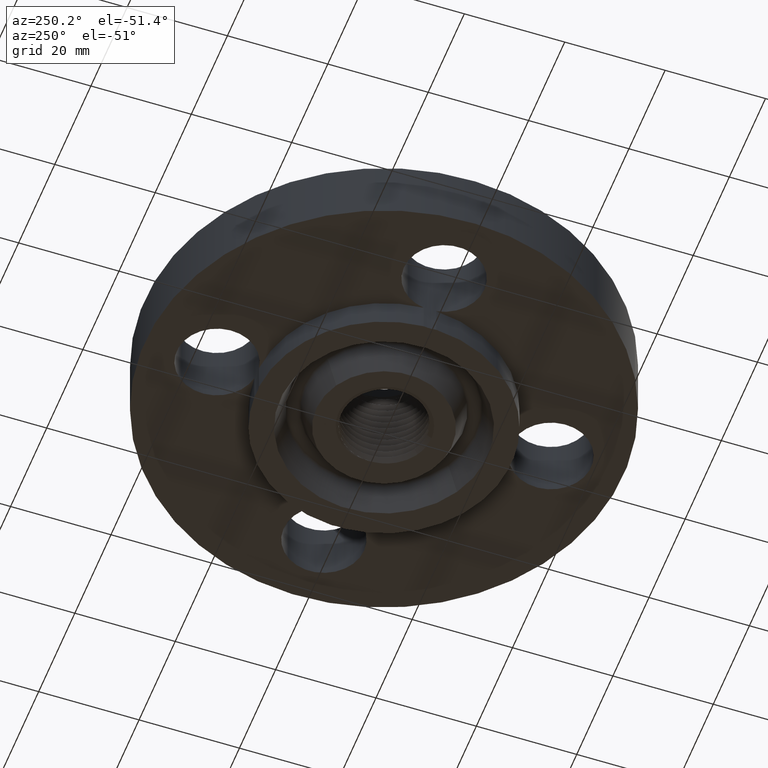
[diagram: clean part render]
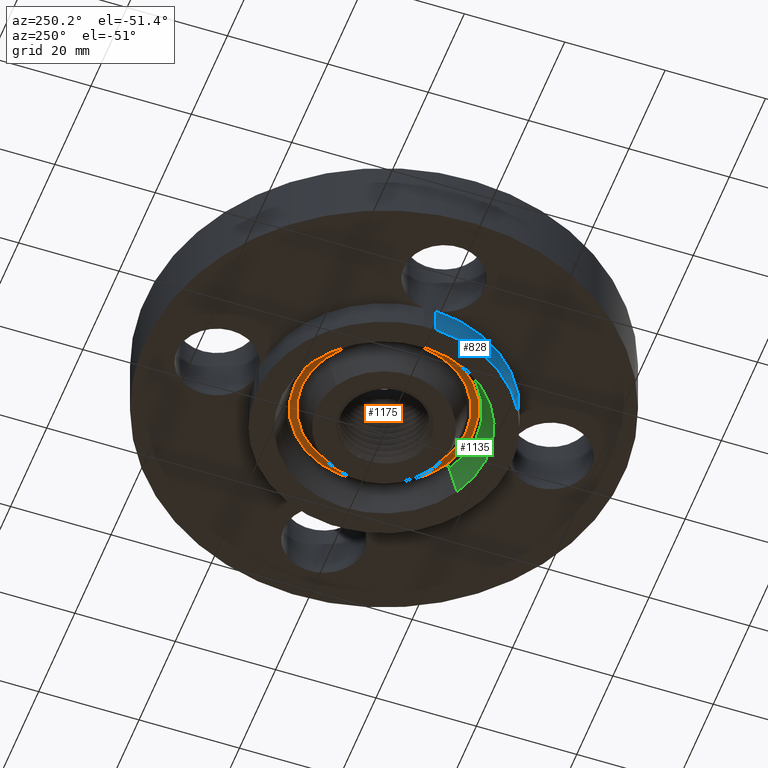
[diagram: same view with three faces highlighted in distinct colors, each labeled with its STEP entity id]
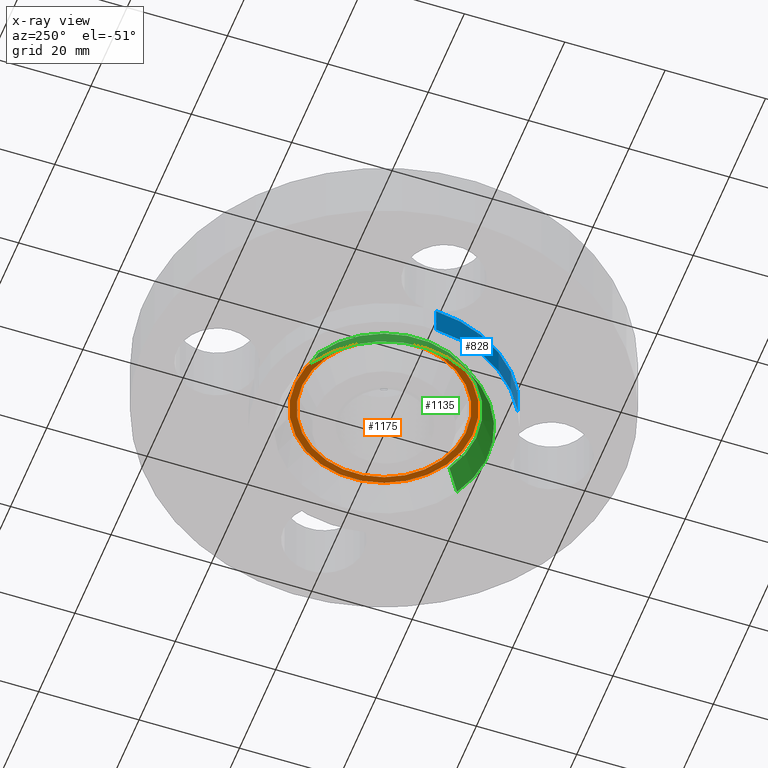
[diagram: x-ray of the same camera — body ghosted, the three highlighted faces saturated]
A machine part, auxiliary view with three faces highlighted in distinct colors.
The next image is the same camera in x-ray (body ghosted, the three faces saturated) — at least one of them is partly hidden behind the body in this view.
Their STEP definitions:

[orange] entity #1175 — the highlighted planar face has unit normal (0, 0, -1).
#676=AXIS2_PLACEMENT_3D('Plane Axis2P3D',#673,#674,#675) ;
#1097=AXIS2_PLACEMENT_3D('Circle Axis2P3D',#1095,#1096,$) ;
#1143=AXIS2_PLACEMENT_3D('Circle Axis2P3D',#1141,#1142,$) ;
#1159=AXIS2_PLACEMENT_3D('Circle Axis2P3D',#1157,#1158,$) ;
#1168=AXIS2_PLACEMENT_3D('Circle Axis2P3D',#1166,#1167,$) ;
#673=CARTESIAN_POINT('Axis2P3D Location',(0.,1.,0.)) ;
#1092=CARTESIAN_POINT('Vertex',(-0.335098263906,0.613393257647,-6.99353086378E-017)) ;
#1095=CARTESIAN_POINT('Axis2P3D Location',(0.,0.,-6.99353086378E-017)) ;
#1099=CARTESIAN_POINT('Vertex',(0.335098263906,-0.613393257647,-6.99353086378E-017)) ;
#1141=CARTESIAN_POINT('Axis2P3D Location',(0.,0.,-6.99353086378E-017)) ;
#1157=CARTESIAN_POINT('Axis2P3D Location',(0.,0.,0.)) ;
#1161=CARTESIAN_POINT('Vertex',(0.309153774873,-0.565902189026,5.24514814784E-017)) ;
#1163=CARTESIAN_POINT('Vertex',(-0.309153774873,0.565902189026,5.24514814784E-017)) ;
#1166=CARTESIAN_POINT('Axis2P3D Location',(0.,0.,0.)) ;
#674=DIRECTION('Axis2P3D Direction',(0.,0.,-0.0393700787402)) ;
#675=DIRECTION('Axis2P3D XDirection',(0.0393700787402,0.,0.)) ;
#1096=DIRECTION('Axis2P3D Direction',(0.,0.,0.0393700787402)) ;
#1142=DIRECTION('Axis2P3D Direction',(0.,0.,0.0393700787402)) ;
#1158=DIRECTION('Axis2P3D Direction',(0.,0.,-0.0393700787402)) ;
#1167=DIRECTION('Axis2P3D Direction',(0.,0.,-0.0393700787402)) ;
#1154=ORIENTED_EDGE('',*,*,#1101,.F.) ;
#1155=ORIENTED_EDGE('',*,*,#1145,.F.) ;
#1172=ORIENTED_EDGE('',*,*,#1165,.T.) ;
#1173=ORIENTED_EDGE('',*,*,#1170,.T.) ;
#1174=FACE_BOUND('',#1171,.T.) ;
#1175=ADVANCED_FACE('PartBody',(#1156,#1174),#677,.T.) ;
#1098=CIRCLE('generated circle',#1097,0.698957892151) ;
#1144=CIRCLE('generated circle',#1143,0.698957892151) ;
#1160=CIRCLE('generated circle',#1159,0.644842107855) ;
#1169=CIRCLE('generated circle',#1168,0.644842107855) ;
#1101=EDGE_CURVE('',#1093,#1100,#1098,.T.) ;
#1145=EDGE_CURVE('',#1100,#1093,#1144,.T.) ;
#1165=EDGE_CURVE('',#1162,#1164,#1160,.F.) ;
#1170=EDGE_CURVE('',#1164,#1162,#1169,.F.) ;
#1153=EDGE_LOOP('',(#1154,#1155)) ;
#1171=EDGE_LOOP('',(#1172,#1173)) ;
#1156=FACE_OUTER_BOUND('',#1153,.T.) ;
#677=PLANE('',#676) ;
#1093=VERTEX_POINT('',#1092) ;
#1100=VERTEX_POINT('',#1099) ;
#1162=VERTEX_POINT('',#1161) ;
#1164=VERTEX_POINT('',#1163) ;

[blue] entity #828 — the highlighted cylindrical surface (partial cylindrical patch) has radius 25.4 mm, axis along (0, 0, -1).
#357=AXIS2_PLACEMENT_3D('Circle Axis2P3D',#355,#356,$) ;
#743=AXIS2_PLACEMENT_3D('Circle Axis2P3D',#741,#742,$) ;
#777=AXIS2_PLACEMENT_3D('Cylinder Axis2P3D',#774,#775,#776) ;
#352=CARTESIAN_POINT('Vertex',(-0.479425538606,-0.877582561894,-0.218800000001)) ;
#355=CARTESIAN_POINT('Axis2P3D Location',(0.,0.,-0.218800000001)) ;
#359=CARTESIAN_POINT('Vertex',(-0.998807251912,-0.0488269754871,-0.218800000001)) ;
#459=CARTESIAN_POINT('Line Origine',(-0.998807251912,-0.0488269754871,0.250000000001)) ;
#463=CARTESIAN_POINT('Vertex',(-0.998807251912,-0.0488269754871,0.)) ;
#741=CARTESIAN_POINT('Axis2P3D Location',(0.,0.,0.)) ;
#745=CARTESIAN_POINT('Vertex',(-0.479425538606,-0.877582561894,-3.49676543189E-017)) ;
#774=CARTESIAN_POINT('Axis2P3D Location',(0.,0.,0.295600000001)) ;
#791=CARTESIAN_POINT('Line Origine',(-0.479425538606,-0.877582561894,-0.1094)) ;
#356=DIRECTION('Axis2P3D Direction',(0.,0.,-0.0393700787402)) ;
#460=DIRECTION('Vector Direction',(0.,0.,-0.0393700787402)) ;
#742=DIRECTION('Axis2P3D Direction',(0.,0.,-0.0393700787402)) ;
#775=DIRECTION('Axis2P3D Direction',(0.,0.,-0.0393700787402)) ;
#776=DIRECTION('Axis2P3D XDirection',(0.00192232186956,0.0393231201539,0.)) ;
#792=DIRECTION('Vector Direction',(0.,0.,-0.0393700787402)) ;
#461=VECTOR('Line Direction',#460,0.0393700787402) ;
#793=VECTOR('Line Direction',#792,0.0393700787402) ;
#823=ORIENTED_EDGE('',*,*,#361,.F.) ;
#824=ORIENTED_EDGE('',*,*,#795,.T.) ;
#825=ORIENTED_EDGE('',*,*,#747,.T.) ;
#826=ORIENTED_EDGE('',*,*,#465,.T.) ;
#828=ADVANCED_FACE('PartBody',(#827),#778,.T.) ;
#358=CIRCLE('generated circle',#357,1.) ;
#744=CIRCLE('generated circle',#743,1.) ;
#778=CYLINDRICAL_SURFACE('generated cylinder',#777,1.) ;
#361=EDGE_CURVE('',#353,#360,#358,.T.) ;
#465=EDGE_CURVE('',#464,#360,#462,.T.) ;
#747=EDGE_CURVE('',#746,#464,#744,.T.) ;
#795=EDGE_CURVE('',#353,#746,#794,.F.) ;
#822=EDGE_LOOP('',(#823,#824,#825,#826)) ;
#827=FACE_OUTER_BOUND('',#822,.T.) ;
#462=LINE('Line',#459,#461) ;
#794=LINE('Line',#791,#793) ;
#353=VERTEX_POINT('',#352) ;
#360=VERTEX_POINT('',#359) ;
#464=VERTEX_POINT('',#463) ;
#746=VERTEX_POINT('',#745) ;

[green] entity #1135 — the highlighted conical surface has half-angle 23 deg.
#416=AXIS2_PLACEMENT_3D('Circle Axis2P3D',#414,#415,$) ;
#1081=AXIS2_PLACEMENT_3D('Circle Axis2P3D',#1079,#1080,$) ;
#1117=AXIS2_PLACEMENT_3D('Cone Axis2P3D',#1114,#1115,#1116) ;
#414=CARTESIAN_POINT('Axis2P3D Location',(-3.49676543189E-017,6.99353086378E-017,-0.218800000001)) ;
#418=CARTESIAN_POINT('Vertex',(0.389557221394,-0.713079710667,-0.218800000001)) ;
#420=CARTESIAN_POINT('Vertex',(-0.389557221394,0.713079710667,-0.218800000001)) ;
#1079=CARTESIAN_POINT('Axis2P3D Location',(0.,0.,-0.0190701156784)) ;
#1083=CARTESIAN_POINT('Vertex',(-0.348911377556,0.638677992583,-0.0190701156784)) ;
#1085=CARTESIAN_POINT('Vertex',(0.348911377556,-0.638677992583,-0.0190701156784)) ;
#1114=CARTESIAN_POINT('Axis2P3D Location',(0.,0.,-0.0190701156784)) ;
#1119=CARTESIAN_POINT('Line Origine',(-0.369234299475,0.675878851625,-0.11893505784)) ;
#1124=CARTESIAN_POINT('Line Origine',(0.369234299475,-0.675878851625,-0.11893505784)) ;
#415=DIRECTION('Axis2P3D Direction',(0.,0.,-0.0393700787402)) ;
#1080=DIRECTION('Axis2P3D Direction',(0.,0.,0.0393700787402)) ;
#1115=DIRECTION('Axis2P3D Direction',(-0.,-0.,-0.0393700787402)) ;
#1116=DIRECTION('Axis2P3D XDirection',(-0.0188750212049,0.0345504945626,0.)) ;
#1120=DIRECTION('Vector Direction',(-0.00737505833565,0.0134999537303,-0.0362403485611)) ;
#1125=DIRECTION('Vector Direction',(0.00737505833565,-0.0134999537303,-0.0362403485611)) ;
#1121=VECTOR('Line Direction',#1120,0.0393700787402) ;
#1126=VECTOR('Line Direction',#1125,0.0393700787402) ;
#1130=ORIENTED_EDGE('',*,*,#422,.T.) ;
#1131=ORIENTED_EDGE('',*,*,#1123,.T.) ;
#1132=ORIENTED_EDGE('',*,*,#1087,.T.) ;
#1133=ORIENTED_EDGE('',*,*,#1128,.F.) ;
#1135=ADVANCED_FACE('PartBody',(#1134),#1118,.F.) ;
#417=CIRCLE('generated circle',#416,0.812550000003) ;
#1082=CIRCLE('generated circle',#1081,0.727769694064) ;
#1118=CONICAL_SURFACE('Cone',#1117,0.727769694064,0.401425727959) ;
#422=EDGE_CURVE('',#419,#421,#417,.T.) ;
#1087=EDGE_CURVE('',#1084,#1086,#1082,.T.) ;
#1123=EDGE_CURVE('',#421,#1084,#1122,.F.) ;
#1128=EDGE_CURVE('',#419,#1086,#1127,.F.) ;
#1129=EDGE_LOOP('',(#1130,#1131,#1132,#1133)) ;
#1134=FACE_OUTER_BOUND('',#1129,.T.) ;
#1122=LINE('Line',#1119,#1121) ;
#1127=LINE('Line',#1124,#1126) ;
#419=VERTEX_POINT('',#418) ;
#421=VERTEX_POINT('',#420) ;
#1084=VERTEX_POINT('',#1083) ;
#1086=VERTEX_POINT('',#1085) ;